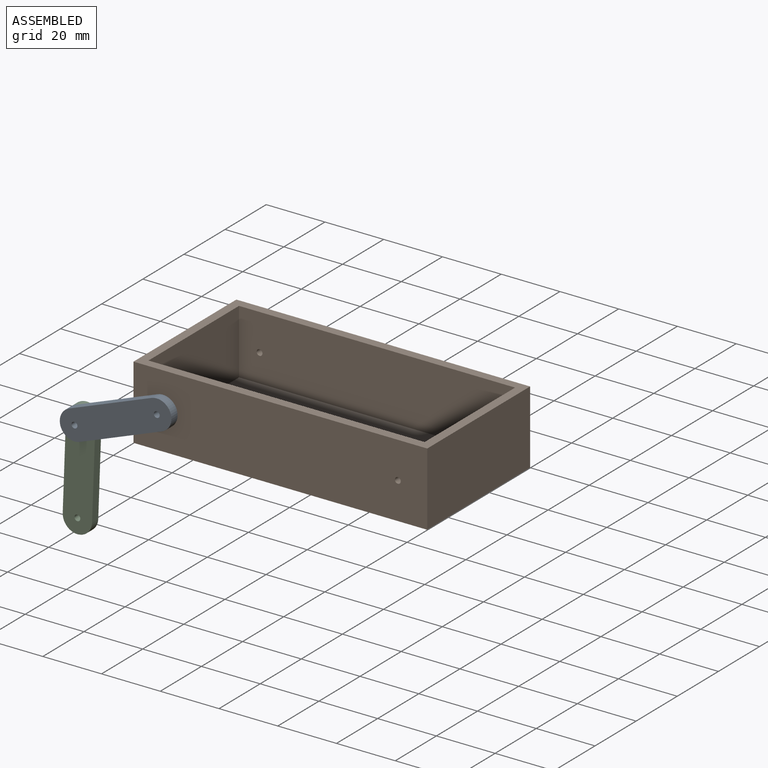
[diagram: assembled view]
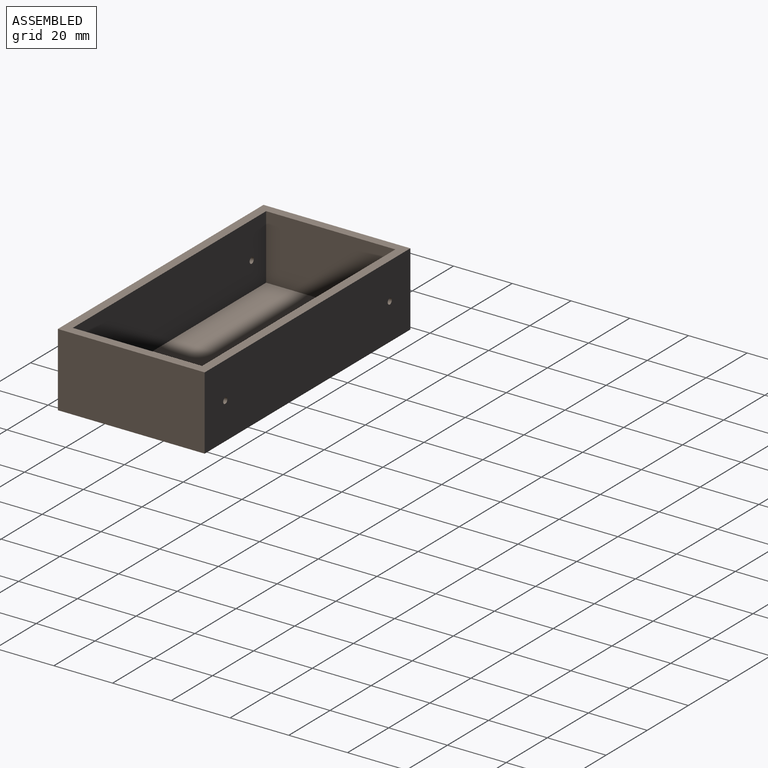
[diagram: assembled view, second angle]
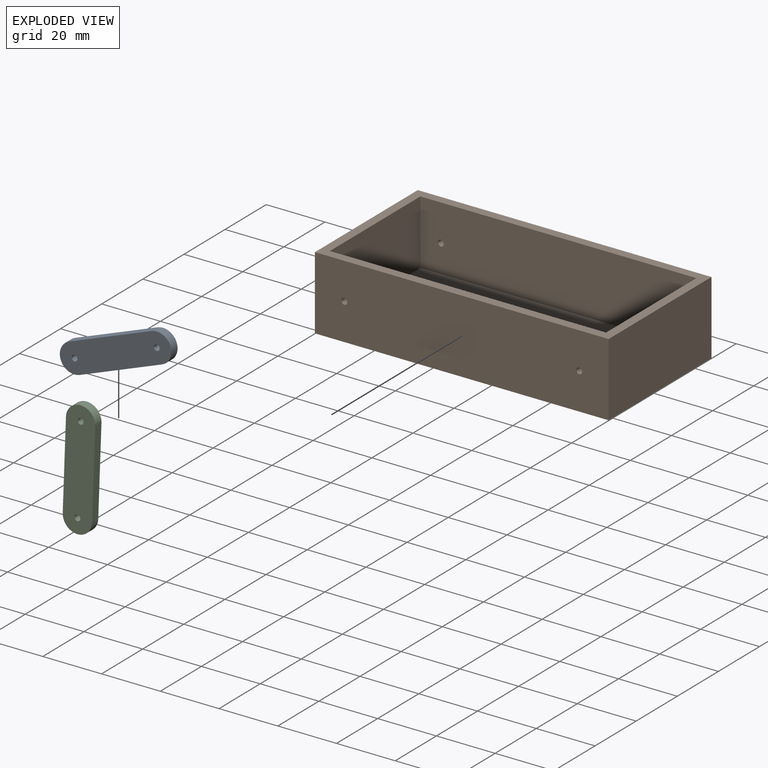
[diagram: exploded view]
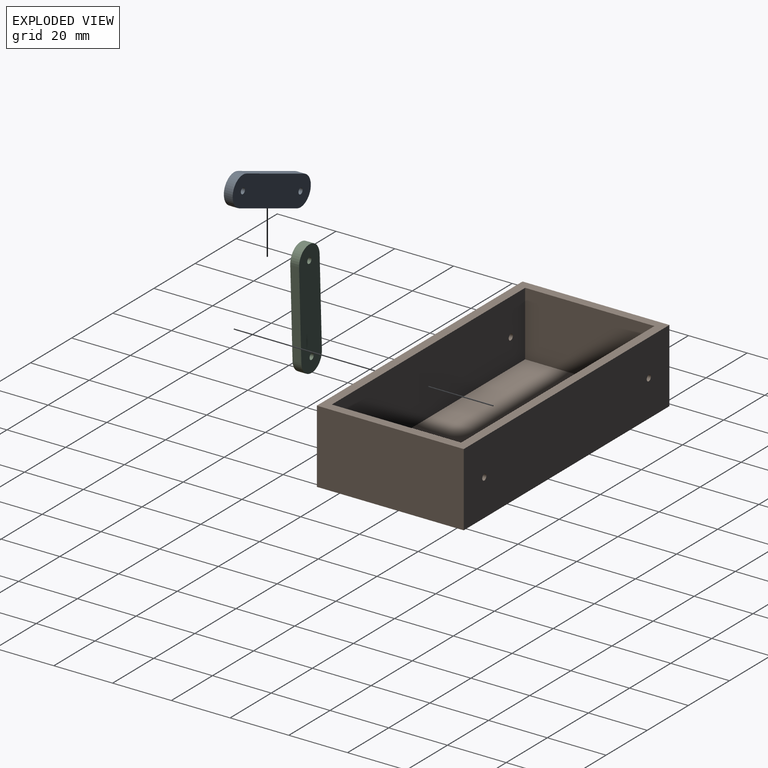
[diagram: exploded view, second angle]
ASSEMBLY  parts=3 mates=2
PART A: 8 faces, bbox 40x3x10 mm
  f0: cylinder r=5mm len=10mm, axis (0,1,0), area 47.1mm2, adj f1,f5,f6,f7
  f1: plane 30x3mm, normal (0,0,-1), area 90mm2, adj f0,f2,f6,f7
  f2: cylinder r=5mm len=10mm, axis (0,1,0), area 47.1mm2, adj f1,f5,f6,f7
  f3: cylinder r=1mm len=3mm, axis (0,1,0), area 18.8mm2, adj f6,f7
  f4: cylinder r=1mm len=3mm, axis (0,1,0), area 18.8mm2, adj f6,f7
  f5: plane 30x3mm, normal (0,0,1), area 90mm2, adj f0,f2,f6,f7
  f6: plane 40x10mm, normal (0,-1,0), area 372.3mm2, adj f0,f1,f2,f3,f4,f5
  f7: plane 40x10mm, normal (0,1,0), area 372.3mm2, adj f0,f1,f2,f3,f4,f5
PART B: 15 faces, bbox 100x50x25 mm
  f0: plane 50x25mm, normal (-1,0,0), area 1250mm2, adj f1,f3,f4,f5
  f1: plane 100x25mm, normal (0,-1,0), area 2493.7mm2, adj f0,f2,f4,f5,f13,f14
  f2: plane 50x25mm, normal (1,0,0), area 1250mm2, adj f1,f3,f4,f5
  f3: plane 100x25mm, normal (0,1,0), area 2493.7mm2, adj f0,f2,f4,f5,f11,f12
  f4: plane 100x50mm, normal (0,0,1), area 864mm2, adj f0,f1,f2,f3,f6,f7,f8,f9
  f5: plane 100x50mm, normal (0,0,-1), area 5000mm2, adj f0,f1,f2,f3
  f6: plane 44x22mm, normal (1,0,0), area 968mm2, adj f4,f7,f9,f10
  f7: plane 94x22mm, normal (0,1,0), area 2061.7mm2, adj f4,f6,f8,f10,f13,f14
  f8: plane 44x22mm, normal (-1,0,0), area 968mm2, adj f4,f7,f9,f10
  f9: plane 94x22mm, normal (0,-1,0), area 2061.7mm2, adj f4,f6,f8,f10,f11,f12
  f10: plane 94x44mm, normal (0,0,1), area 4136mm2, adj f6,f7,f8,f9
  f11: cylinder r=1mm len=3mm, axis (0,-1,0), area 18.8mm2, adj f3,f9
  f12: cylinder r=1mm len=3mm, axis (0,-1,0), area 18.8mm2, adj f3,f9
  f13: cylinder r=1mm len=3mm, axis (0,-1,0), area 18.8mm2, adj f1,f7
  f14: cylinder r=1mm len=3mm, axis (0,-1,0), area 18.8mm2, adj f1,f7
PART C: same geometry as A
PLACE A rot(axis=(0,1,0),159deg) t=(-23.67,-12.24,-25.64)mm
PLACE B t=(-36.55,-12.24,-44.6)mm fixed
PLACE C rot(axis=(0,1,0),92.1deg) t=(-59.37,-9.24,-37.65)mm
MATE revolute C.f0 <-> A.f2  axis (0,-1,0) through (-54.56,-12.24,-42.83)mm
MATE revolute B.f12 <-> A.f0  axis (0,-1,0) through (-26.55,-12.24,-32.1)mm
